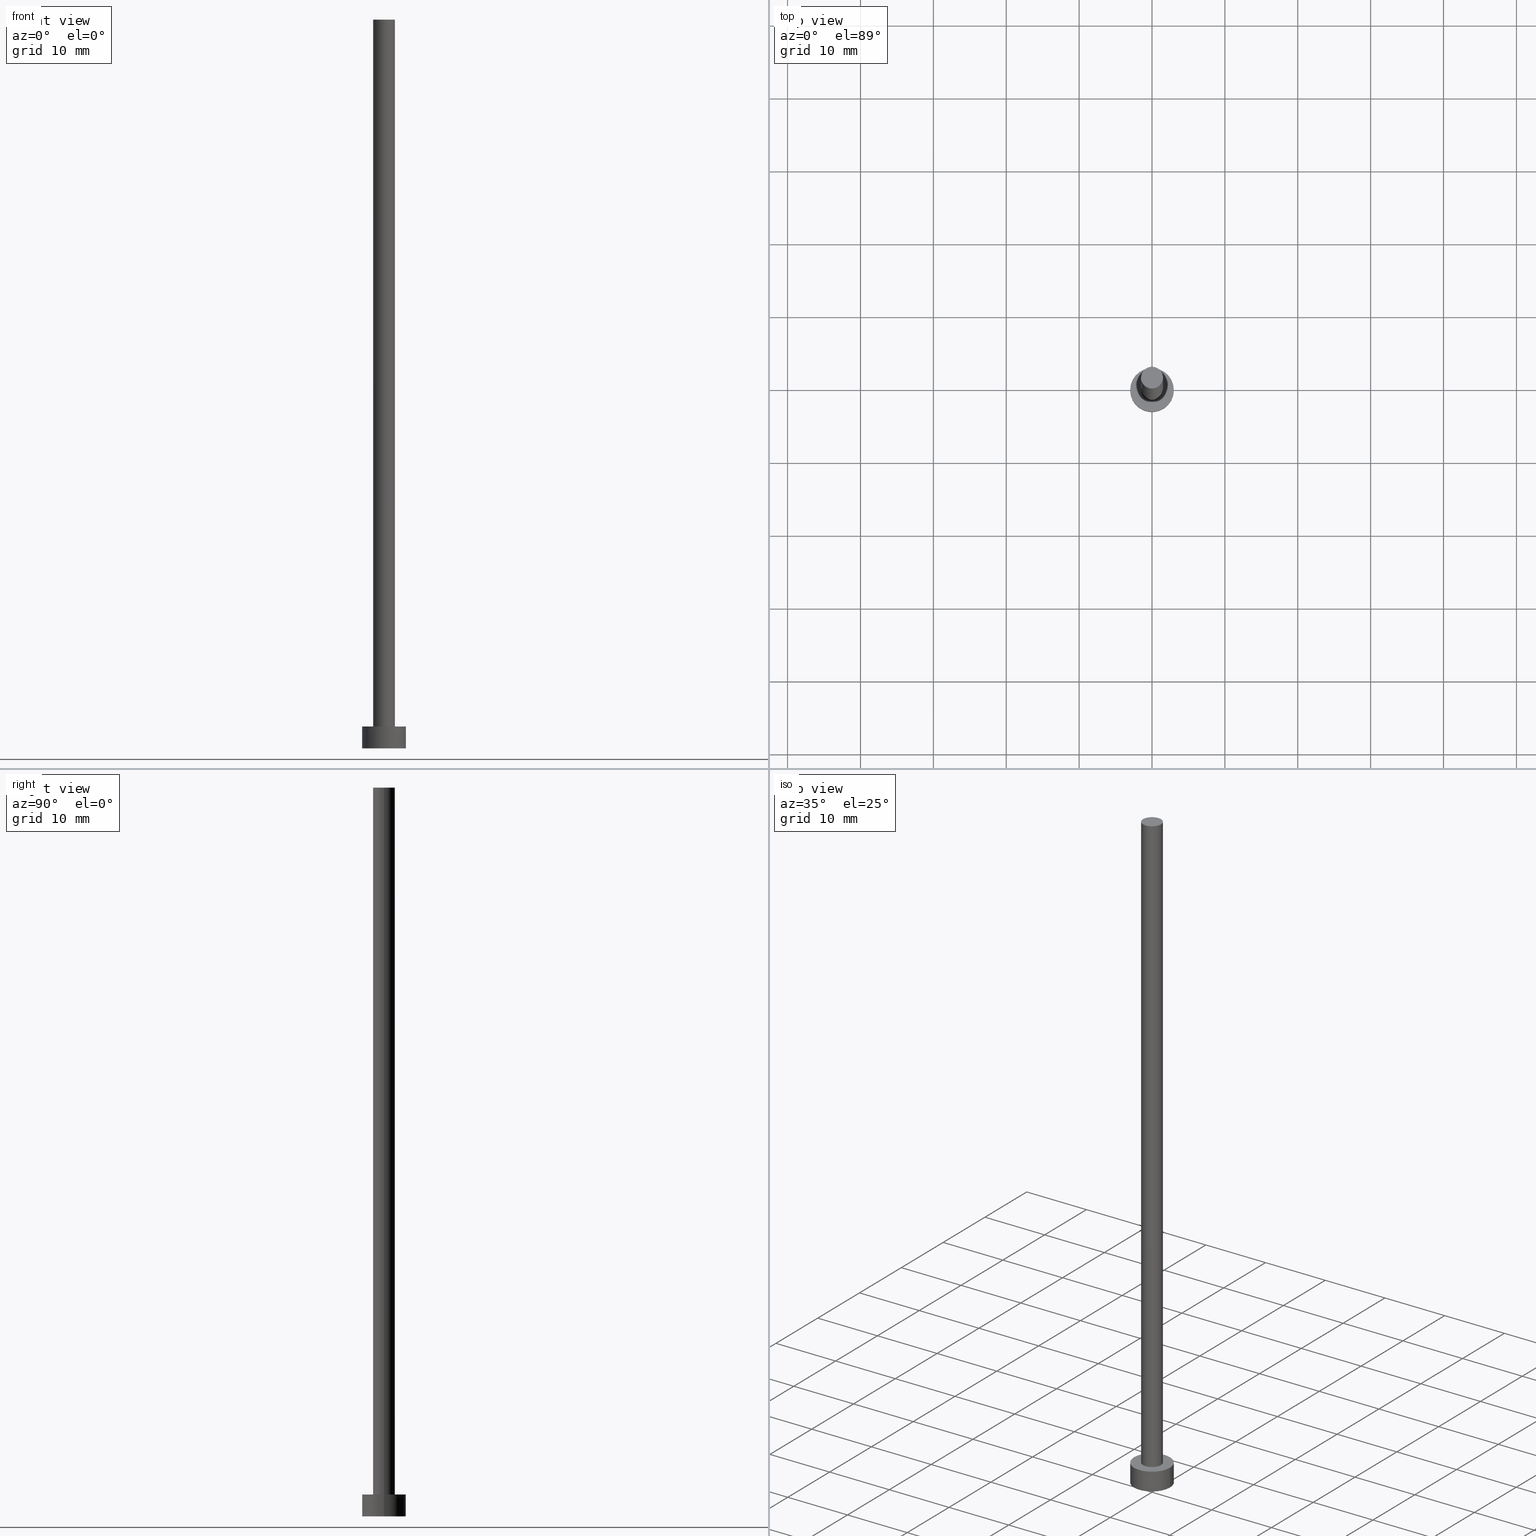
[diagram: canonical four-view strip — front | top / right | iso, engineering-drawing reading convention]
A machine part, canonical four-view strip (front | top / right | iso — engineering-drawing reading convention). The complete STEP part file that produces these views, byte-faithful:
ISO-10303-21;
HEADER;
FILE_DESCRIPTION (( 'STEP AP203' ),
    '1' );
FILE_NAME ('a904.STEP',
    '2023-02-13T14:27:32',
    ( '' ),
    ( '' ),
    'SwSTEP 2.0',
    'SolidWorks 2019',
    '' );
FILE_SCHEMA (( 'CONFIG_CONTROL_DESIGN' ));
ENDSEC;

DATA;
#1 = CC_DESIGN_DATE_AND_TIME_ASSIGNMENT ( #187, #96, ( #251 ) ) ;
#2 = CARTESIAN_POINT ( 'NONE',  ( 0.000000000000000000, 0.000000000000000000, 0.000000000000000000 ) ) ;
#3 = AXIS2_PLACEMENT_3D ( 'NONE', #142, #144, #24 ) ;
#4 = ORIENTED_EDGE ( 'NONE', *, *, #111, .F. ) ;
#5 = ADVANCED_FACE ( 'NONE', ( #86 ), #127, .T. ) ;
#6 = FACE_BOUND ( 'NONE', #200, .T. ) ;
#7 = DIRECTION ( 'NONE',  ( 1.000000000000000000, 0.000000000000000000, 0.000000000000000000 ) ) ;
#8 = EDGE_CURVE ( 'NONE', #135, #22, #161, .T. ) ;
#9 = ORIENTED_EDGE ( 'NONE', *, *, #206, .T. ) ;
#10 = DESIGN_CONTEXT ( 'detailed design', #132, 'design' ) ;
#11 = CARTESIAN_POINT ( 'NONE',  ( -1.500000000000000222, 0.000000000000000000, 100.0000000000000000 ) ) ;
#12 = AXIS2_PLACEMENT_3D ( 'NONE', #60, #32, #37 ) ;
#13 = APPROVAL_ROLE ( '' ) ;
#14 = COORDINATED_UNIVERSAL_TIME_OFFSET ( 1, 0, .AHEAD. ) ;
#15 = ORIENTED_EDGE ( 'NONE', *, *, #136, .F. ) ;
#16 = APPROVAL_ROLE ( '' ) ;
#17 = CARTESIAN_POINT ( 'NONE',  ( 0.000000000000000000, 0.000000000000000000, 3.000000000000000000 ) ) ;
#18 = CYLINDRICAL_SURFACE ( 'NONE', #107, 1.500000000000000222 ) ;
#19 = CC_DESIGN_PERSON_AND_ORGANIZATION_ASSIGNMENT ( #171, #153, ( #251 ) ) ;
#20 = AXIS2_PLACEMENT_3D ( 'NONE', #71, #145, #52 ) ;
#21 = ADVANCED_FACE ( 'NONE', ( #6, #69 ), #47, .T. ) ;
#22 = VERTEX_POINT ( 'NONE', #163 ) ;
#23 = VECTOR ( 'NONE', #139, 1000.000000000000000 ) ;
#24 = DIRECTION ( 'NONE',  ( 1.000000000000000000, 0.000000000000000000, -0.000000000000000000 ) ) ;
#25 = ADVANCED_FACE ( 'NONE', ( #245 ), #106, .F. ) ;
#26 = ORIENTED_EDGE ( 'NONE', *, *, #193, .T. ) ;
#27 = LINE ( 'NONE', #154, #120 ) ;
#28 = CIRCLE ( 'NONE', #203, 3.000000000000000444 ) ;
#29 = ADVANCED_FACE ( 'NONE', ( #183 ), #146, .T. ) ;
#30 = COORDINATED_UNIVERSAL_TIME_OFFSET ( 1, 0, .AHEAD. ) ;
#31 = APPROVAL_ROLE ( '' ) ;
#32 = DIRECTION ( 'NONE',  ( 0.000000000000000000, 0.000000000000000000, 1.000000000000000000 ) ) ;
#33 = CC_DESIGN_PERSON_AND_ORGANIZATION_ASSIGNMENT ( #155, #79, ( #138 ) ) ;
#34 = APPROVAL_DATE_TIME ( #149, #219 ) ;
#35 = CYLINDRICAL_SURFACE ( 'NONE', #63, 1.500000000000000222 ) ;
#36 = ORIENTED_EDGE ( 'NONE', *, *, #122, .T. ) ;
#37 = DIRECTION ( 'NONE',  ( 1.000000000000000000, 0.000000000000000000, 0.000000000000000000 ) ) ;
#38 = DIRECTION ( 'NONE',  ( 1.000000000000000000, 0.000000000000000000, 0.000000000000000000 ) ) ;
#39 = LOCAL_TIME ( 15, 27, 32.00000000000000000, #76 ) ;
#40 = EDGE_CURVE ( 'NONE', #22, #72, #165, .T. ) ;
#41 = ORIENTED_EDGE ( 'NONE', *, *, #202, .T. ) ;
#42 = FACE_OUTER_BOUND ( 'NONE', #158, .T. ) ;
#43 = EDGE_CURVE ( 'NONE', #143, #181, #28, .T. ) ;
#44 = ORIENTED_EDGE ( 'NONE', *, *, #193, .F. ) ;
#45 = ORIENTED_EDGE ( 'NONE', *, *, #240, .T. ) ;
#46 = AXIS2_PLACEMENT_3D ( 'NONE', #78, #137, #84 ) ;
#47 = PLANE ( 'NONE',  #3 ) ;
#48 = CC_DESIGN_SECURITY_CLASSIFICATION ( #109, ( #138 ) ) ;
#49 = ORIENTED_EDGE ( 'NONE', *, *, #136, .T. ) ;
#50 = APPLICATION_PROTOCOL_DEFINITION ( 'international standard', 'config_control_design', 1994, #114 ) ;
#51 = CARTESIAN_POINT ( 'NONE',  ( 0.000000000000000000, 0.000000000000000000, 100.0000000000000000 ) ) ;
#52 = DIRECTION ( 'NONE',  ( 1.000000000000000000, 0.000000000000000000, 0.000000000000000000 ) ) ;
#53 = CIRCLE ( 'NONE', #87, 3.000000000000000444 ) ;
#54 = ADVANCED_BREP_SHAPE_REPRESENTATION ( 'a904', ( #118, #20 ), #222 ) ;
#55 = PERSON_AND_ORGANIZATION ( #229, #148 ) ;
#56 = COORDINATED_UNIVERSAL_TIME_OFFSET ( 1, 0, .AHEAD. ) ;
#57 = LOCAL_TIME ( 15, 27, 32.00000000000000000, #14 ) ;
#58 = DIRECTION ( 'NONE',  ( -0.000000000000000000, -0.000000000000000000, -1.000000000000000000 ) ) ;
#59 = ORIENTED_EDGE ( 'NONE', *, *, #40, .F. ) ;
#60 = CARTESIAN_POINT ( 'NONE',  ( 0.000000000000000000, 0.000000000000000000, 100.0000000000000000 ) ) ;
#61 = ORIENTED_EDGE ( 'NONE', *, *, #82, .T. ) ;
#62 = DATE_TIME_ROLE ( 'classification_date' ) ;
#63 = AXIS2_PLACEMENT_3D ( 'NONE', #51, #129, #212 ) ;
#64 = AXIS2_PLACEMENT_3D ( 'NONE', #126, #246, #105 ) ;
#65 = EDGE_LOOP ( 'NONE', ( #44, #61, #45, #180 ) ) ;
#66 = ORIENTED_EDGE ( 'NONE', *, *, #128, .F. ) ;
#67 = DIRECTION ( 'NONE',  ( -0.000000000000000000, -0.000000000000000000, -1.000000000000000000 ) ) ;
#68 = ADVANCED_FACE ( 'NONE', ( #42 ), #232, .T. ) ;
#69 = FACE_OUTER_BOUND ( 'NONE', #191, .T. ) ;
#70 = ORIENTED_EDGE ( 'NONE', *, *, #202, .F. ) ;
#71 = CARTESIAN_POINT ( 'NONE',  ( 0.000000000000000000, 0.000000000000000000, 0.000000000000000000 ) ) ;
#72 = VERTEX_POINT ( 'NONE', #201 ) ;
#73 = DIRECTION ( 'NONE',  ( -1.000000000000000000, 0.000000000000000000, 0.000000000000000000 ) ) ;
#74 = CARTESIAN_POINT ( 'NONE',  ( 0.000000000000000000, 0.000000000000000000, 0.000000000000000000 ) ) ;
#75 = APPROVAL ( #205, 'NEUR�EN�' ) ;
#76 = COORDINATED_UNIVERSAL_TIME_OFFSET ( 1, 0, .AHEAD. ) ;
#77 = PERSON_AND_ORGANIZATION_ROLE ( 'design_supplier' ) ;
#78 = CARTESIAN_POINT ( 'NONE',  ( 0.000000000000000000, 0.000000000000000000, 3.000000000000000000 ) ) ;
#79 = PERSON_AND_ORGANIZATION_ROLE ( 'creator' ) ;
#80 = DIRECTION ( 'NONE',  ( 0.000000000000000000, 0.000000000000000000, 1.000000000000000000 ) ) ;
#81 = ORIENTED_EDGE ( 'NONE', *, *, #8, .T. ) ;
#82 = EDGE_CURVE ( 'NONE', #99, #72, #173, .T. ) ;
#83 = CALENDAR_DATE ( 2023, 13, 2 ) ;
#84 = DIRECTION ( 'NONE',  ( 1.000000000000000000, 0.000000000000000000, 0.000000000000000000 ) ) ;
#85 = EDGE_LOOP ( 'NONE', ( #66, #235, #36, #49 ) ) ;
#86 = FACE_OUTER_BOUND ( 'NONE', #214, .T. ) ;
#87 = AXIS2_PLACEMENT_3D ( 'NONE', #17, #225, #195 ) ;
#88 = MECHANICAL_CONTEXT ( 'NONE', #114, 'mechanical' ) ;
#89 = DIRECTION ( 'NONE',  ( -1.000000000000000000, 0.000000000000000000, 0.000000000000000000 ) ) ;
#90 = DIRECTION ( 'NONE',  ( -0.000000000000000000, -0.000000000000000000, -1.000000000000000000 ) ) ;
#91 = CC_DESIGN_APPROVAL ( #75, ( #109 ) ) ;
#92 = DIRECTION ( 'NONE',  ( 0.000000000000000000, 0.000000000000000000, 1.000000000000000000 ) ) ;
#93 = CIRCLE ( 'NONE', #238, 1.500000000000000222 ) ;
#94 = CALENDAR_DATE ( 2023, 13, 2 ) ;
#95 = CARTESIAN_POINT ( 'NONE',  ( 0.000000000000000000, 0.000000000000000000, 100.0000000000000000 ) ) ;
#96 = DATE_TIME_ROLE ( 'creation_date' ) ;
#97 = CARTESIAN_POINT ( 'NONE',  ( 3.000000000000000444, 3.673940397442060361E-16, 3.000000000000000000 ) ) ;
#98 = APPROVAL_PERSON_ORGANIZATION ( #204, #75, #31 ) ;
#99 = VERTEX_POINT ( 'NONE', #211 ) ;
#100 =( NAMED_UNIT ( * ) SI_UNIT ( $, .STERADIAN. ) SOLID_ANGLE_UNIT ( ) );
#101 = VECTOR ( 'NONE', #253, 1000.000000000000000 ) ;
#102 = ORIENTED_EDGE ( 'NONE', *, *, #240, .F. ) ;
#103 = CARTESIAN_POINT ( 'NONE',  ( 0.000000000000000000, 0.000000000000000000, 3.000000000000000000 ) ) ;
#104 = DIRECTION ( 'NONE',  ( 0.000000000000000000, 0.000000000000000000, 1.000000000000000000 ) ) ;
#105 = DIRECTION ( 'NONE',  ( 1.000000000000000000, 0.000000000000000000, -0.000000000000000000 ) ) ;
#106 = PLANE ( 'NONE',  #64 ) ;
#107 = AXIS2_PLACEMENT_3D ( 'NONE', #166, #147, #73 ) ;
#108 = DIRECTION ( 'NONE',  ( -0.000000000000000000, -0.000000000000000000, -1.000000000000000000 ) ) ;
#109 = SECURITY_CLASSIFICATION ( '', '', #228 ) ;
#110 = PERSON_AND_ORGANIZATION_ROLE ( 'design_owner' ) ;
#111 = EDGE_CURVE ( 'NONE', #181, #143, #53, .T. ) ;
#112 = DATE_AND_TIME ( #94, #199 ) ;
#113 = CLOSED_SHELL ( 'NONE', ( #162, #5, #29, #21, #25, #248, #68 ) ) ;
#114 = APPLICATION_CONTEXT ( 'configuration controlled 3d designs of mechanical parts and assemblies' ) ;
#115 = APPROVAL_STATUS ( 'not_yet_approved' ) ;
#116 = ORIENTED_EDGE ( 'NONE', *, *, #43, .T. ) ;
#117 = DIRECTION ( 'NONE',  ( 0.000000000000000000, 0.000000000000000000, 1.000000000000000000 ) ) ;
#118 = MANIFOLD_SOLID_BREP ( 'P�idat vysunut�m3', #113 ) ;
#119 = FACE_OUTER_BOUND ( 'NONE', #213, .T. ) ;
#120 = VECTOR ( 'NONE', #108, 1000.000000000000000 ) ;
#121 =( LENGTH_UNIT ( ) NAMED_UNIT ( * ) SI_UNIT ( .MILLI., .METRE. ) );
#122 = EDGE_CURVE ( 'NONE', #143, #198, #255, .T. ) ;
#123 = CARTESIAN_POINT ( 'NONE',  ( 0.000000000000000000, 0.000000000000000000, 3.000000000000000000 ) ) ;
#124 = CIRCLE ( 'NONE', #189, 3.000000000000000444 ) ;
#125 = APPROVAL_PERSON_ORGANIZATION ( #133, #210, #13 ) ;
#126 = CARTESIAN_POINT ( 'NONE',  ( 0.000000000000000000, 0.000000000000000000, 0.000000000000000000 ) ) ;
#127 = CYLINDRICAL_SURFACE ( 'NONE', #216, 3.000000000000000444 ) ;
#128 = EDGE_CURVE ( 'NONE', #181, #196, #27, .T. ) ;
#129 = DIRECTION ( 'NONE',  ( -0.000000000000000000, -0.000000000000000000, -1.000000000000000000 ) ) ;
#130 = PRODUCT ( 'a904', 'a904', '', ( #88 ) ) ;
#131 = PERSON_AND_ORGANIZATION_ROLE ( 'classification_officer' ) ;
#132 = APPLICATION_CONTEXT ( 'configuration controlled 3d designs of mechanical parts and assemblies' ) ;
#133 = PERSON_AND_ORGANIZATION ( #229, #148 ) ;
#134 = CARTESIAN_POINT ( 'NONE',  ( -3.000000000000000444, 0.000000000000000000, 3.000000000000000000 ) ) ;
#135 = VERTEX_POINT ( 'NONE', #11 ) ;
#136 = EDGE_CURVE ( 'NONE', #198, #196, #249, .T. ) ;
#137 = DIRECTION ( 'NONE',  ( 0.000000000000000000, 0.000000000000000000, 1.000000000000000000 ) ) ;
#138 = PRODUCT_DEFINITION_FORMATION_WITH_SPECIFIED_SOURCE ( 'LIBOVOLN�', '', #130, .NOT_KNOWN. ) ;
#139 = DIRECTION ( 'NONE',  ( -0.000000000000000000, -0.000000000000000000, -1.000000000000000000 ) ) ;
#140 = LOCAL_TIME ( 15, 27, 32.00000000000000000, #30 ) ;
#141 = AXIS2_PLACEMENT_3D ( 'NONE', #220, #242, #215 ) ;
#142 = CARTESIAN_POINT ( 'NONE',  ( 0.000000000000000000, 0.000000000000000000, 3.000000000000000000 ) ) ;
#143 = VERTEX_POINT ( 'NONE', #134 ) ;
#144 = DIRECTION ( 'NONE',  ( 0.000000000000000000, 0.000000000000000000, 1.000000000000000000 ) ) ;
#145 = DIRECTION ( 'NONE',  ( 0.000000000000000000, 0.000000000000000000, 1.000000000000000000 ) ) ;
#146 = CYLINDRICAL_SURFACE ( 'NONE', #247, 3.000000000000000444 ) ;
#147 = DIRECTION ( 'NONE',  ( -0.000000000000000000, -0.000000000000000000, -1.000000000000000000 ) ) ;
#148 = ORGANIZATION ( 'NEUR�EN�', 'NEUR�EN�', '' ) ;
#149 = DATE_AND_TIME ( #83, #39 ) ;
#150 = COORDINATED_UNIVERSAL_TIME_OFFSET ( 1, 0, .AHEAD. ) ;
#151 = PRODUCT_RELATED_PRODUCT_CATEGORY ( 'detail', '', ( #130 ) ) ;
#152 = APPROVAL_PERSON_ORGANIZATION ( #169, #219, #16 ) ;
#153 = PERSON_AND_ORGANIZATION_ROLE ( 'creator' ) ;
#154 = CARTESIAN_POINT ( 'NONE',  ( 3.000000000000000444, 3.673940397442060361E-16, 3.000000000000000000 ) ) ;
#155 = PERSON_AND_ORGANIZATION ( #229, #148 ) ;
#156 = CARTESIAN_POINT ( 'NONE',  ( 0.000000000000000000, 0.000000000000000000, 100.0000000000000000 ) ) ;
#157 = CIRCLE ( 'NONE', #46, 1.500000000000000222 ) ;
#158 = EDGE_LOOP ( 'NONE', ( #9, #26 ) ) ;
#159 = CC_DESIGN_PERSON_AND_ORGANIZATION_ASSIGNMENT ( #221, #110, ( #130 ) ) ;
#160 = AXIS2_PLACEMENT_3D ( 'NONE', #95, #92, #207 ) ;
#161 = LINE ( 'NONE', #224, #23 ) ;
#162 = ADVANCED_FACE ( 'NONE', ( #237 ), #35, .T. ) ;
#163 = CARTESIAN_POINT ( 'NONE',  ( -1.500000000000000222, 0.000000000000000000, 3.000000000000000000 ) ) ;
#164 = CC_DESIGN_APPROVAL ( #219, ( #138 ) ) ;
#165 = CIRCLE ( 'NONE', #141, 1.500000000000000222 ) ;
#166 = CARTESIAN_POINT ( 'NONE',  ( 0.000000000000000000, 0.000000000000000000, 100.0000000000000000 ) ) ;
#167 = CARTESIAN_POINT ( 'NONE',  ( -3.000000000000000444, 0.000000000000000000, 0.000000000000000000 ) ) ;
#168 = CC_DESIGN_DATE_AND_TIME_ASSIGNMENT ( #230, #62, ( #109 ) ) ;
#169 = PERSON_AND_ORGANIZATION ( #229, #148 ) ;
#170 = CC_DESIGN_APPROVAL ( #210, ( #251 ) ) ;
#171 = PERSON_AND_ORGANIZATION ( #229, #148 ) ;
#172 = AXIS2_PLACEMENT_3D ( 'NONE', #74, #117, #250 ) ;
#173 = LINE ( 'NONE', #226, #101 ) ;
#174 = PERSON_AND_ORGANIZATION ( #229, #148 ) ;
#175 = CARTESIAN_POINT ( 'NONE',  ( 3.000000000000000444, 3.673940397442060361E-16, 0.000000000000000000 ) ) ;
#176 = ORIENTED_EDGE ( 'NONE', *, *, #82, .F. ) ;
#177 = CALENDAR_DATE ( 2023, 13, 2 ) ;
#178 = CARTESIAN_POINT ( 'NONE',  ( -3.000000000000000444, 0.000000000000000000, 3.000000000000000000 ) ) ;
#179 = EDGE_LOOP ( 'NONE', ( #15, #70 ) ) ;
#180 = ORIENTED_EDGE ( 'NONE', *, *, #8, .F. ) ;
#181 = VERTEX_POINT ( 'NONE', #97 ) ;
#182 = ORIENTED_EDGE ( 'NONE', *, *, #40, .T. ) ;
#183 = FACE_OUTER_BOUND ( 'NONE', #85, .T. ) ;
#184 = DIRECTION ( 'NONE',  ( -1.000000000000000000, 0.000000000000000000, 0.000000000000000000 ) ) ;
#185 = DIRECTION ( 'NONE',  ( 0.000000000000000000, 0.000000000000000000, 1.000000000000000000 ) ) ;
#186 = PRODUCT_DEFINITION_SHAPE ( 'NONE', 'NONE',  #251 ) ;
#187 = DATE_AND_TIME ( #177, #57 ) ;
#188 = APPROVAL_DATE_TIME ( #112, #75 ) ;
#189 = AXIS2_PLACEMENT_3D ( 'NONE', #2, #80, #234 ) ;
#190 = CALENDAR_DATE ( 2023, 13, 2 ) ;
#191 = EDGE_LOOP ( 'NONE', ( #116, #241 ) ) ;
#192 = APPLICATION_PROTOCOL_DEFINITION ( 'international standard', 'config_control_design', 1994, #132 ) ;
#193 = EDGE_CURVE ( 'NONE', #99, #135, #93, .T. ) ;
#194 = LOCAL_TIME ( 15, 27, 32.00000000000000000, #150 ) ;
#195 = DIRECTION ( 'NONE',  ( 1.000000000000000000, 0.000000000000000000, 0.000000000000000000 ) ) ;
#196 = VERTEX_POINT ( 'NONE', #175 ) ;
#197 = CC_DESIGN_PERSON_AND_ORGANIZATION_ASSIGNMENT ( #55, #131, ( #109 ) ) ;
#198 = VERTEX_POINT ( 'NONE', #167 ) ;
#199 = LOCAL_TIME ( 15, 27, 32.00000000000000000, #56 ) ;
#200 = EDGE_LOOP ( 'NONE', ( #59, #102 ) ) ;
#201 = CARTESIAN_POINT ( 'NONE',  ( 1.500000000000000222, 1.836970198721029934E-16, 3.000000000000000000 ) ) ;
#202 = EDGE_CURVE ( 'NONE', #196, #198, #124, .T. ) ;
#203 = AXIS2_PLACEMENT_3D ( 'NONE', #217, #104, #7 ) ;
#204 = PERSON_AND_ORGANIZATION ( #229, #148 ) ;
#205 = APPROVAL_STATUS ( 'not_yet_approved' ) ;
#206 = EDGE_CURVE ( 'NONE', #135, #99, #231, .T. ) ;
#207 = DIRECTION ( 'NONE',  ( 1.000000000000000000, 0.000000000000000000, -0.000000000000000000 ) ) ;
#208 = APPROVAL_DATE_TIME ( #233, #210 ) ;
#209 = ORIENTED_EDGE ( 'NONE', *, *, #128, .T. ) ;
#210 = APPROVAL ( #115, 'NEUR�EN�' ) ;
#211 = CARTESIAN_POINT ( 'NONE',  ( 1.500000000000000222, 1.836970198721029934E-16, 100.0000000000000000 ) ) ;
#212 = DIRECTION ( 'NONE',  ( -1.000000000000000000, 0.000000000000000000, 0.000000000000000000 ) ) ;
#213 = EDGE_LOOP ( 'NONE', ( #176, #239, #81, #182 ) ) ;
#214 = EDGE_LOOP ( 'NONE', ( #4, #209, #41, #243 ) ) ;
#215 = DIRECTION ( 'NONE',  ( 1.000000000000000000, 0.000000000000000000, 0.000000000000000000 ) ) ;
#216 = AXIS2_PLACEMENT_3D ( 'NONE', #103, #90, #89 ) ;
#217 = CARTESIAN_POINT ( 'NONE',  ( 0.000000000000000000, 0.000000000000000000, 3.000000000000000000 ) ) ;
#218 =( NAMED_UNIT ( * ) PLANE_ANGLE_UNIT ( ) SI_UNIT ( $, .RADIAN. ) );
#219 = APPROVAL ( #252, 'NEUR�EN�' ) ;
#220 = CARTESIAN_POINT ( 'NONE',  ( 0.000000000000000000, 0.000000000000000000, 3.000000000000000000 ) ) ;
#221 = PERSON_AND_ORGANIZATION ( #229, #148 ) ;
#222 =( GEOMETRIC_REPRESENTATION_CONTEXT ( 3 ) GLOBAL_UNCERTAINTY_ASSIGNED_CONTEXT ( ( #223 ) ) GLOBAL_UNIT_ASSIGNED_CONTEXT ( ( #121, #218, #100 ) ) REPRESENTATION_CONTEXT ( 'NONE', 'WORKASPACE' ) );
#223 = UNCERTAINTY_MEASURE_WITH_UNIT (LENGTH_MEASURE( 1.000000000000000082E-05 ), #121, 'distance_accuracy_value', 'NONE');
#224 = CARTESIAN_POINT ( 'NONE',  ( -1.500000000000000222, 0.000000000000000000, 100.0000000000000000 ) ) ;
#225 = DIRECTION ( 'NONE',  ( 0.000000000000000000, 0.000000000000000000, 1.000000000000000000 ) ) ;
#226 = CARTESIAN_POINT ( 'NONE',  ( 1.500000000000000222, 1.836970198721029934E-16, 100.0000000000000000 ) ) ;
#227 = VECTOR ( 'NONE', #58, 1000.000000000000000 ) ;
#228 = SECURITY_CLASSIFICATION_LEVEL ( 'unclassified' ) ;
#229 = PERSON ( 'NEUR�EN�', 'NEUR�EN�', 'NEUR�EN�', ('NEUR�EN�'), ('NEUR�EN�'), ('NEUR�EN�') ) ;
#230 = DATE_AND_TIME ( #236, #194 ) ;
#231 = CIRCLE ( 'NONE', #12, 1.500000000000000222 ) ;
#232 = PLANE ( 'NONE',  #160 ) ;
#233 = DATE_AND_TIME ( #190, #140 ) ;
#234 = DIRECTION ( 'NONE',  ( 1.000000000000000000, 0.000000000000000000, 0.000000000000000000 ) ) ;
#235 = ORIENTED_EDGE ( 'NONE', *, *, #43, .F. ) ;
#236 = CALENDAR_DATE ( 2023, 13, 2 ) ;
#237 = FACE_OUTER_BOUND ( 'NONE', #65, .T. ) ;
#238 = AXIS2_PLACEMENT_3D ( 'NONE', #156, #185, #38 ) ;
#239 = ORIENTED_EDGE ( 'NONE', *, *, #206, .F. ) ;
#240 = EDGE_CURVE ( 'NONE', #72, #22, #157, .T. ) ;
#241 = ORIENTED_EDGE ( 'NONE', *, *, #111, .T. ) ;
#242 = DIRECTION ( 'NONE',  ( 0.000000000000000000, 0.000000000000000000, 1.000000000000000000 ) ) ;
#243 = ORIENTED_EDGE ( 'NONE', *, *, #122, .F. ) ;
#244 = CC_DESIGN_PERSON_AND_ORGANIZATION_ASSIGNMENT ( #174, #77, ( #138 ) ) ;
#245 = FACE_OUTER_BOUND ( 'NONE', #179, .T. ) ;
#246 = DIRECTION ( 'NONE',  ( 0.000000000000000000, 0.000000000000000000, 1.000000000000000000 ) ) ;
#247 = AXIS2_PLACEMENT_3D ( 'NONE', #123, #67, #184 ) ;
#248 = ADVANCED_FACE ( 'NONE', ( #119 ), #18, .T. ) ;
#249 = CIRCLE ( 'NONE', #172, 3.000000000000000444 ) ;
#250 = DIRECTION ( 'NONE',  ( 1.000000000000000000, 0.000000000000000000, 0.000000000000000000 ) ) ;
#251 = PRODUCT_DEFINITION ( 'NEZN�M�', '', #138, #10 ) ;
#252 = APPROVAL_STATUS ( 'not_yet_approved' ) ;
#253 = DIRECTION ( 'NONE',  ( -0.000000000000000000, -0.000000000000000000, -1.000000000000000000 ) ) ;
#254 = SHAPE_DEFINITION_REPRESENTATION ( #186, #54 ) ;
#255 = LINE ( 'NONE', #178, #227 ) ;
ENDSEC;
END-ISO-10303-21;
